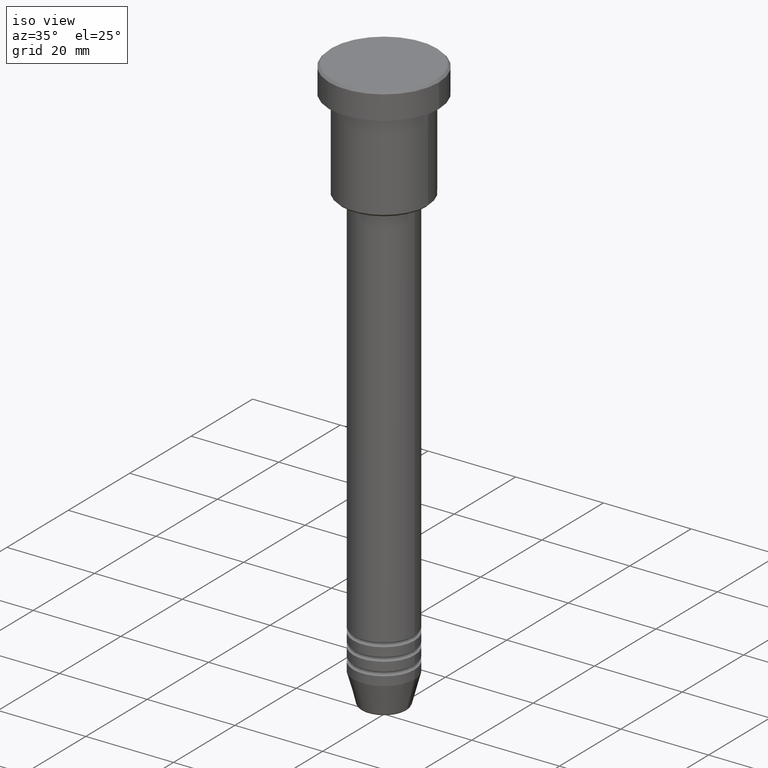
[diagram: clean part render]
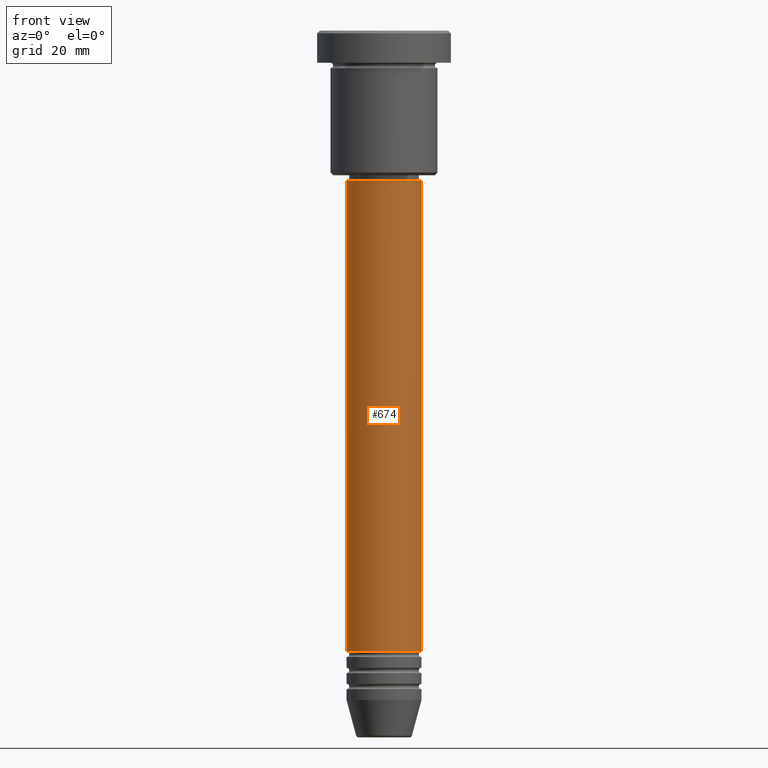
[diagram: tour spotlight — one face highlighted and labeled with its STEP entity id]
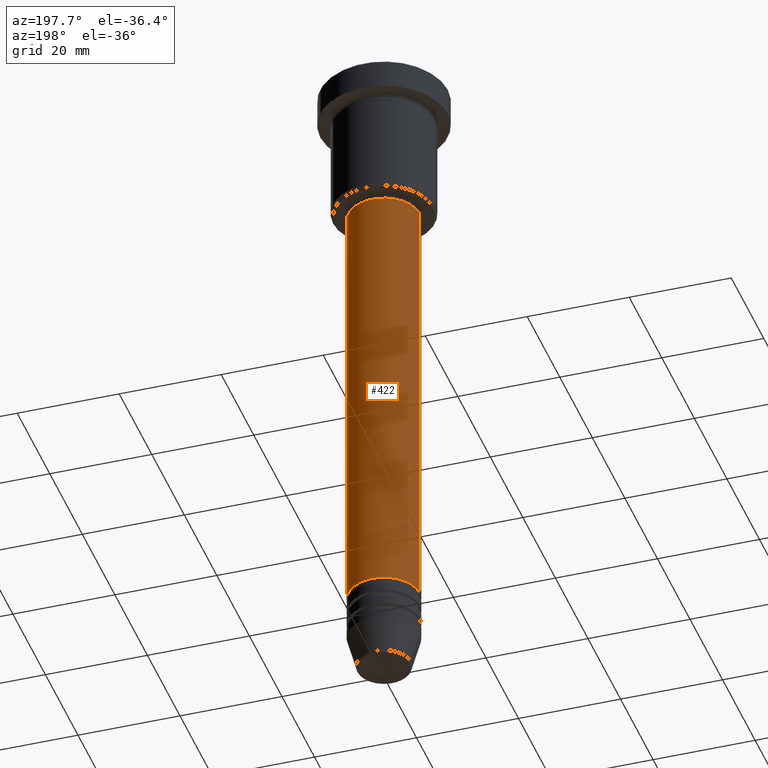
[diagram: tour spotlight — one face highlighted and labeled with its STEP entity id]
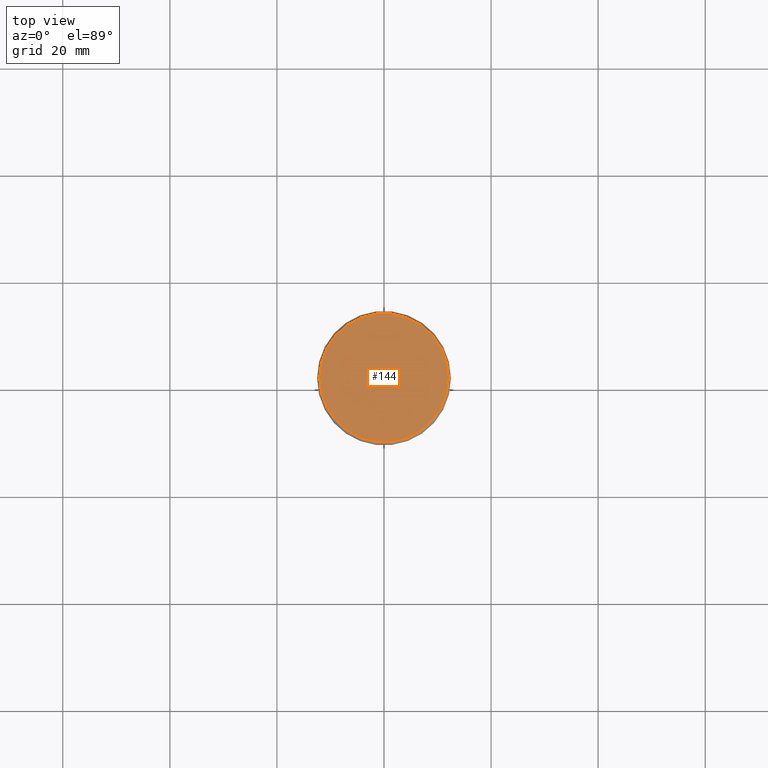
[diagram: tour spotlight — one face highlighted and labeled with its STEP entity id]
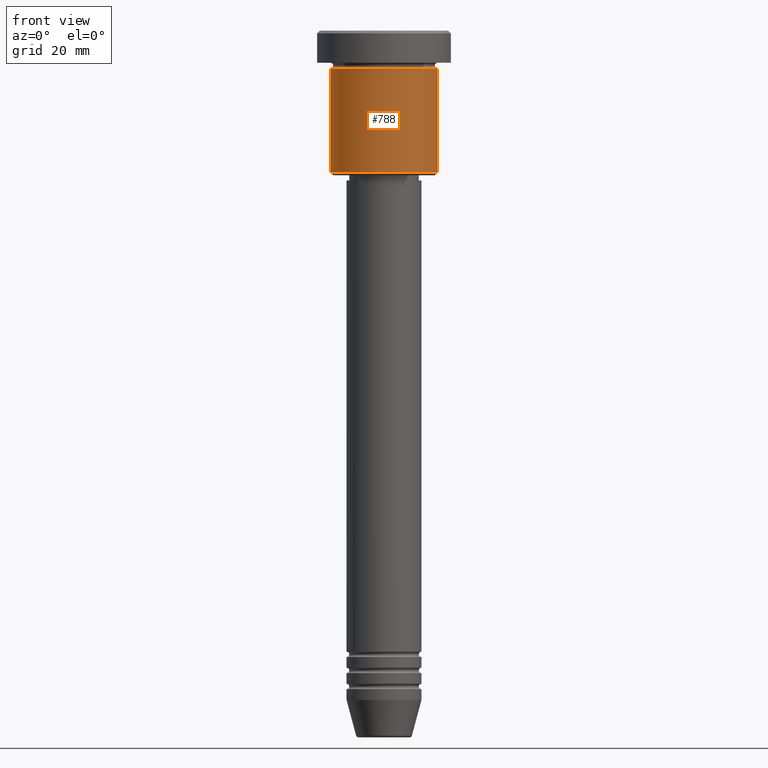
[diagram: tour spotlight — one face highlighted and labeled with its STEP entity id]
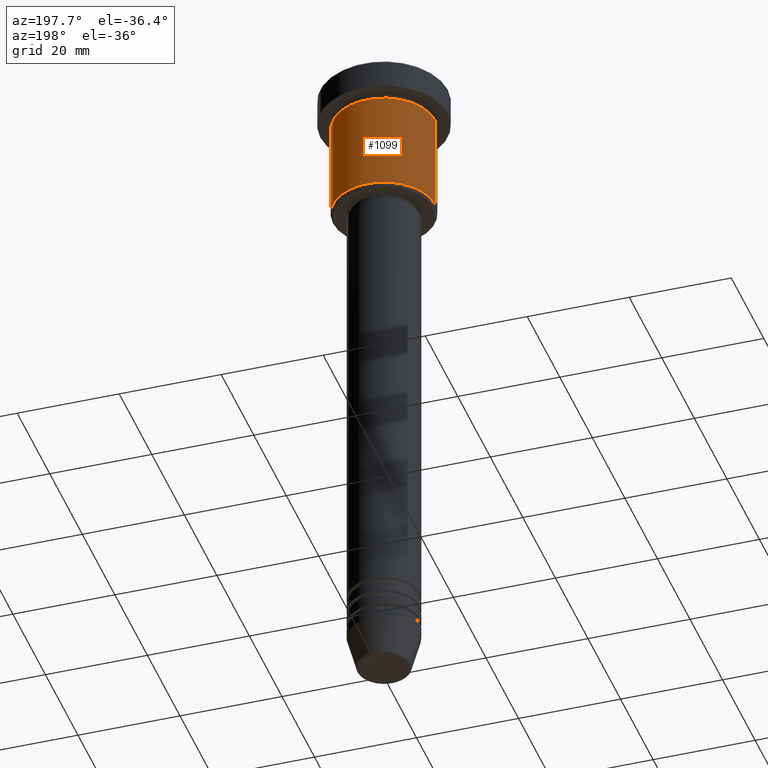
[diagram: tour spotlight — one face highlighted and labeled with its STEP entity id]
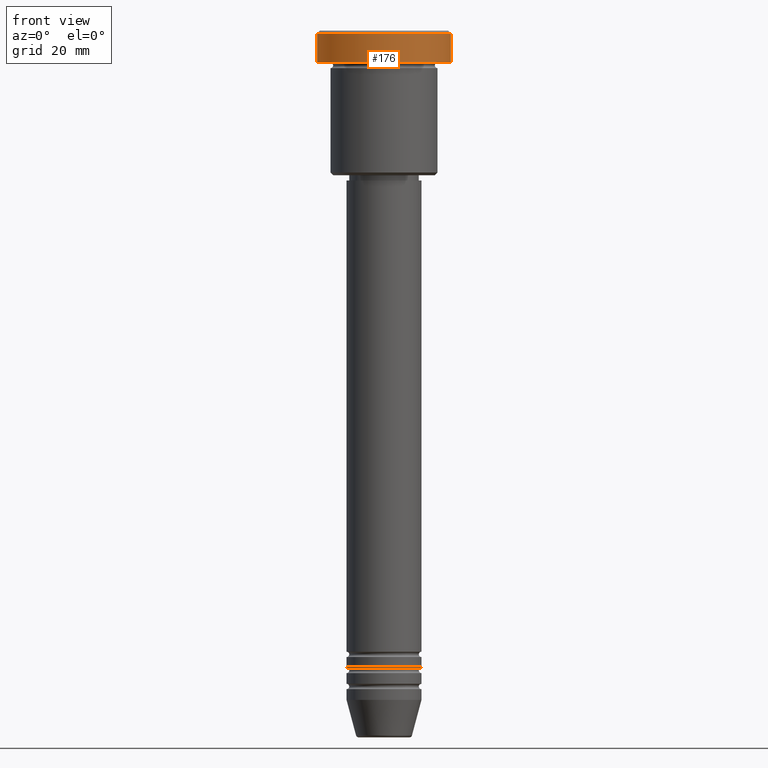
[diagram: tour spotlight — one face highlighted and labeled with its STEP entity id]
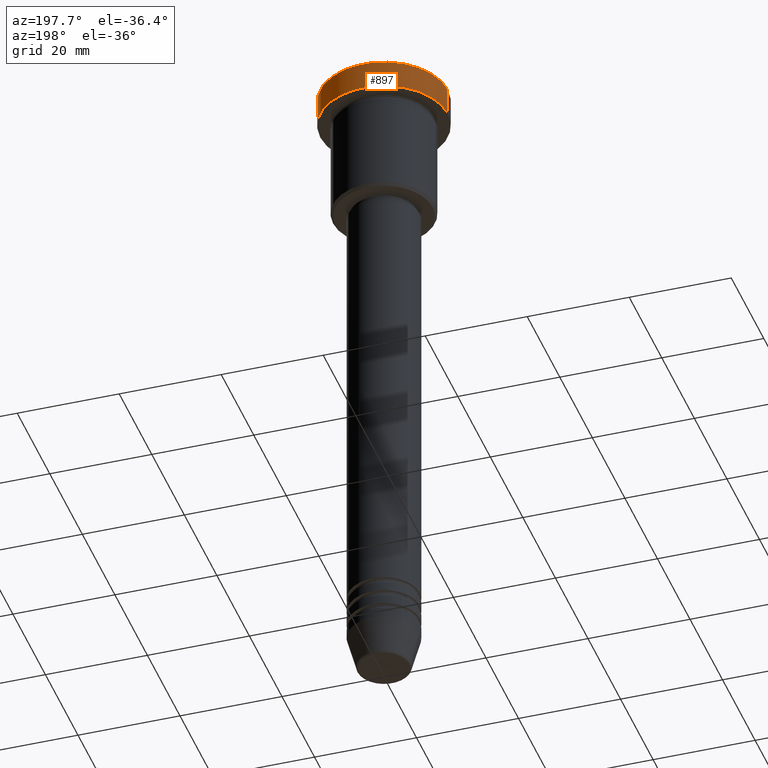
[diagram: tour spotlight — one face highlighted and labeled with its STEP entity id]
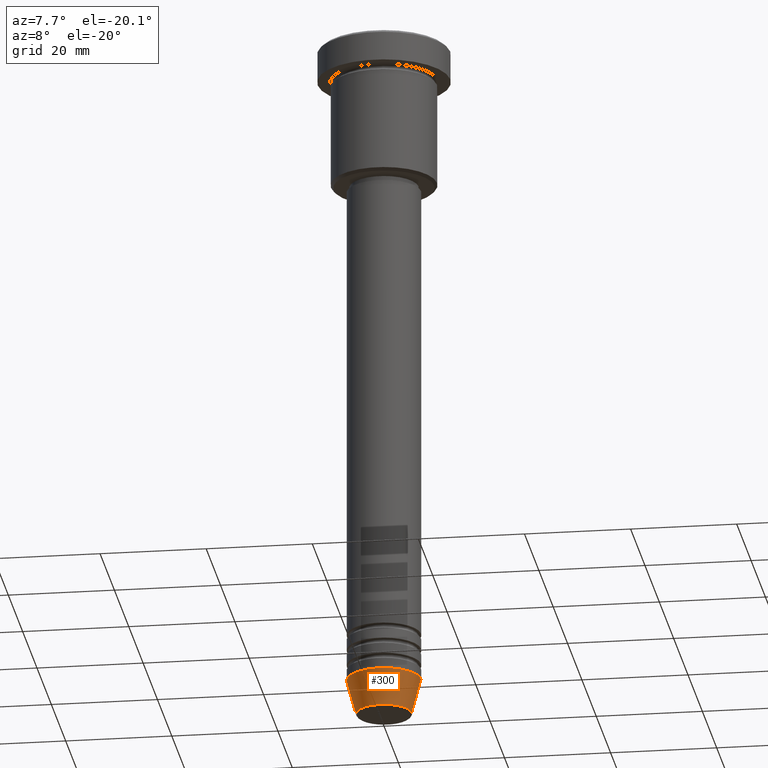
[diagram: tour spotlight — one face highlighted and labeled with its STEP entity id]
A machine part: a face-by-face anatomy tour. The part has 43 B-rep faces; the first image is the clean iso view, then the 8 largest visible faces are spotlighted one at a time (largest first), each with its STEP entity span.

Face 1 — front view, entity #674. In plain terms, the highlighted cylindrical surface (partial cylindrical patch) has radius 7 mm, axis along (-0, -0, 1).
Definition (entity closure, byte-faithful):
#102 = VERTEX_POINT ( 'NONE', #853 ) ;
#124 = DIRECTION ( 'NONE',  ( -0.000000000000000000, -0.000000000000000000, 1.000000000000000000 ) ) ;
#146 = CARTESIAN_POINT ( 'NONE',  ( 0.000000000000000000, 0.000000000000000000, -28.00000000000000355 ) ) ;
#150 = DIRECTION ( 'NONE',  ( -0.000000000000000000, -0.000000000000000000, 1.000000000000000000 ) ) ;
#235 = DIRECTION ( 'NONE',  ( 1.000000000000000000, 0.000000000000000000, 0.000000000000000000 ) ) ;
#245 = DIRECTION ( 'NONE',  ( -0.000000000000000000, -0.000000000000000000, 1.000000000000000000 ) ) ;
#258 = CARTESIAN_POINT ( 'NONE',  ( -7.000000000000000000, 8.572527594031473190E-16, -115.9999999999999574 ) ) ;
#273 = ORIENTED_EDGE ( 'NONE', *, *, #1077, .T. ) ;
#303 = LINE ( 'NONE', #1009, #556 ) ;
#356 = CARTESIAN_POINT ( 'NONE',  ( 7.000000000000000000, 0.000000000000000000, -28.00000000000000355 ) ) ;
#372 = DIRECTION ( 'NONE',  ( -0.000000000000000000, -0.000000000000000000, 1.000000000000000000 ) ) ;
#418 = DIRECTION ( 'NONE',  ( 1.000000000000000000, 0.000000000000000000, 0.000000000000000000 ) ) ;
#462 = EDGE_LOOP ( 'NONE', ( #1013, #539, #273, #823 ) ) ;
#471 = CIRCLE ( 'NONE', #558, 7.000000000000000000 ) ;
#516 = DIRECTION ( 'NONE',  ( 1.000000000000000000, 0.000000000000000000, 0.000000000000000000 ) ) ;
#539 = ORIENTED_EDGE ( 'NONE', *, *, #1178, .T. ) ;
#556 = VECTOR ( 'NONE', #372, 1000.000000000000000 ) ;
#558 = AXIS2_PLACEMENT_3D ( 'NONE', #608, #1074, #418 ) ;
#579 = LINE ( 'NONE', #935, #1011 ) ;
#608 = CARTESIAN_POINT ( 'NONE',  ( 0.000000000000000000, 0.000000000000000000, -115.9999999999999574 ) ) ;
#621 = EDGE_CURVE ( 'NONE', #830, #102, #303, .T. ) ;
#638 = VERTEX_POINT ( 'NONE', #1032 ) ;
#674 = ADVANCED_FACE ( 'NONE', ( #1028 ), #781, .T. ) ;
#687 = CARTESIAN_POINT ( 'NONE',  ( 0.000000000000000000, 0.000000000000000000, 0.000000000000000000 ) ) ;
#743 = AXIS2_PLACEMENT_3D ( 'NONE', #146, #150, #516 ) ;
#766 = EDGE_CURVE ( 'NONE', #102, #844, #986, .T. ) ;
#781 = CYLINDRICAL_SURFACE ( 'NONE', #847, 7.000000000000000000 ) ;
#823 = ORIENTED_EDGE ( 'NONE', *, *, #766, .F. ) ;
#830 = VERTEX_POINT ( 'NONE', #258 ) ;
#844 = VERTEX_POINT ( 'NONE', #356 ) ;
#847 = AXIS2_PLACEMENT_3D ( 'NONE', #687, #245, #235 ) ;
#853 = CARTESIAN_POINT ( 'NONE',  ( -7.000000000000000000, 8.572527594031473190E-16, -28.00000000000000355 ) ) ;
#935 = CARTESIAN_POINT ( 'NONE',  ( 7.000000000000000000, 0.000000000000000000, 0.000000000000000000 ) ) ;
#986 = CIRCLE ( 'NONE', #743, 7.000000000000000000 ) ;
#1009 = CARTESIAN_POINT ( 'NONE',  ( -7.000000000000000000, 8.572527594031473190E-16, 0.000000000000000000 ) ) ;
#1011 = VECTOR ( 'NONE', #124, 1000.000000000000000 ) ;
#1013 = ORIENTED_EDGE ( 'NONE', *, *, #621, .F. ) ;
#1028 = FACE_OUTER_BOUND ( 'NONE', #462, .T. ) ;
#1032 = CARTESIAN_POINT ( 'NONE',  ( 7.000000000000000000, 0.000000000000000000, -115.9999999999999574 ) ) ;
#1074 = DIRECTION ( 'NONE',  ( -0.000000000000000000, -0.000000000000000000, 1.000000000000000000 ) ) ;
#1077 = EDGE_CURVE ( 'NONE', #638, #844, #579, .T. ) ;
#1178 = EDGE_CURVE ( 'NONE', #830, #638, #471, .T. ) ;

Face 2 — auxiliary view, entity #422. In plain terms, the highlighted cylindrical surface (partial cylindrical patch) has radius 7 mm, axis along (-0, -0, 1).
Definition (entity closure, byte-faithful):
#9 = ORIENTED_EDGE ( 'NONE', *, *, #1077, .F. ) ;
#68 = DIRECTION ( 'NONE',  ( -0.000000000000000000, -0.000000000000000000, 1.000000000000000000 ) ) ;
#102 = VERTEX_POINT ( 'NONE', #853 ) ;
#124 = DIRECTION ( 'NONE',  ( -0.000000000000000000, -0.000000000000000000, 1.000000000000000000 ) ) ;
#188 = CARTESIAN_POINT ( 'NONE',  ( 0.000000000000000000, 0.000000000000000000, -28.00000000000000355 ) ) ;
#258 = CARTESIAN_POINT ( 'NONE',  ( -7.000000000000000000, 8.572527594031473190E-16, -115.9999999999999574 ) ) ;
#266 = CYLINDRICAL_SURFACE ( 'NONE', #776, 7.000000000000000000 ) ;
#267 = AXIS2_PLACEMENT_3D ( 'NONE', #1122, #1128, #1014 ) ;
#303 = LINE ( 'NONE', #1009, #556 ) ;
#352 = DIRECTION ( 'NONE',  ( -0.000000000000000000, -0.000000000000000000, 1.000000000000000000 ) ) ;
#356 = CARTESIAN_POINT ( 'NONE',  ( 7.000000000000000000, 0.000000000000000000, -28.00000000000000355 ) ) ;
#372 = DIRECTION ( 'NONE',  ( -0.000000000000000000, -0.000000000000000000, 1.000000000000000000 ) ) ;
#395 = ORIENTED_EDGE ( 'NONE', *, *, #621, .T. ) ;
#422 = ADVANCED_FACE ( 'NONE', ( #899 ), #266, .T. ) ;
#446 = DIRECTION ( 'NONE',  ( 1.000000000000000000, 0.000000000000000000, 0.000000000000000000 ) ) ;
#473 = ORIENTED_EDGE ( 'NONE', *, *, #874, .F. ) ;
#556 = VECTOR ( 'NONE', #372, 1000.000000000000000 ) ;
#579 = LINE ( 'NONE', #935, #1011 ) ;
#615 = EDGE_CURVE ( 'NONE', #638, #830, #967, .T. ) ;
#621 = EDGE_CURVE ( 'NONE', #830, #102, #303, .T. ) ;
#638 = VERTEX_POINT ( 'NONE', #1032 ) ;
#711 = CARTESIAN_POINT ( 'NONE',  ( 0.000000000000000000, 0.000000000000000000, 0.000000000000000000 ) ) ;
#776 = AXIS2_PLACEMENT_3D ( 'NONE', #711, #68, #446 ) ;
#818 = ORIENTED_EDGE ( 'NONE', *, *, #615, .T. ) ;
#830 = VERTEX_POINT ( 'NONE', #258 ) ;
#844 = VERTEX_POINT ( 'NONE', #356 ) ;
#849 = CIRCLE ( 'NONE', #887, 7.000000000000000000 ) ;
#853 = CARTESIAN_POINT ( 'NONE',  ( -7.000000000000000000, 8.572527594031473190E-16, -28.00000000000000355 ) ) ;
#874 = EDGE_CURVE ( 'NONE', #844, #102, #849, .T. ) ;
#887 = AXIS2_PLACEMENT_3D ( 'NONE', #188, #352, #1175 ) ;
#899 = FACE_OUTER_BOUND ( 'NONE', #1137, .T. ) ;
#935 = CARTESIAN_POINT ( 'NONE',  ( 7.000000000000000000, 0.000000000000000000, 0.000000000000000000 ) ) ;
#967 = CIRCLE ( 'NONE', #267, 7.000000000000000000 ) ;
#1009 = CARTESIAN_POINT ( 'NONE',  ( -7.000000000000000000, 8.572527594031473190E-16, 0.000000000000000000 ) ) ;
#1011 = VECTOR ( 'NONE', #124, 1000.000000000000000 ) ;
#1014 = DIRECTION ( 'NONE',  ( 1.000000000000000000, 0.000000000000000000, 0.000000000000000000 ) ) ;
#1032 = CARTESIAN_POINT ( 'NONE',  ( 7.000000000000000000, 0.000000000000000000, -115.9999999999999574 ) ) ;
#1077 = EDGE_CURVE ( 'NONE', #638, #844, #579, .T. ) ;
#1122 = CARTESIAN_POINT ( 'NONE',  ( 0.000000000000000000, 0.000000000000000000, -115.9999999999999574 ) ) ;
#1128 = DIRECTION ( 'NONE',  ( -0.000000000000000000, -0.000000000000000000, 1.000000000000000000 ) ) ;
#1137 = EDGE_LOOP ( 'NONE', ( #818, #395, #473, #9 ) ) ;
#1175 = DIRECTION ( 'NONE',  ( 1.000000000000000000, 0.000000000000000000, 0.000000000000000000 ) ) ;

Face 3 — top view, entity #144. In plain terms, the highlighted planar face has unit normal (0, -0, 1).
Definition (entity closure, byte-faithful):
#6 = VERTEX_POINT ( 'NONE', #483 ) ;
#33 = AXIS2_PLACEMENT_3D ( 'NONE', #795, #168, #709 ) ;
#44 = EDGE_CURVE ( 'NONE', #6, #177, #699, .T. ) ;
#111 = AXIS2_PLACEMENT_3D ( 'NONE', #949, #404, #657 ) ;
#144 = ADVANCED_FACE ( 'NONE', ( #592 ), #759, .T. ) ;
#168 = DIRECTION ( 'NONE',  ( -0.000000000000000000, -0.000000000000000000, 1.000000000000000000 ) ) ;
#177 = VERTEX_POINT ( 'NONE', #344 ) ;
#317 = AXIS2_PLACEMENT_3D ( 'NONE', #553, #1008, #1095 ) ;
#344 = CARTESIAN_POINT ( 'NONE',  ( -12.00000000000002487, 0.000000000000000000, 0.000000000000000000 ) ) ;
#404 = DIRECTION ( 'NONE',  ( 0.000000000000000000, -0.000000000000000000, 1.000000000000000000 ) ) ;
#419 = ORIENTED_EDGE ( 'NONE', *, *, #813, .T. ) ;
#439 = ORIENTED_EDGE ( 'NONE', *, *, #44, .T. ) ;
#483 = CARTESIAN_POINT ( 'NONE',  ( 12.00000000000002487, 1.500192328955509115E-15, 0.000000000000000000 ) ) ;
#553 = CARTESIAN_POINT ( 'NONE',  ( 0.000000000000000000, 0.000000000000000000, 0.000000000000000000 ) ) ;
#592 = FACE_OUTER_BOUND ( 'NONE', #1036, .T. ) ;
#657 = DIRECTION ( 'NONE',  ( 1.000000000000000000, 0.000000000000000000, 0.000000000000000000 ) ) ;
#699 = CIRCLE ( 'NONE', #317, 12.00000000000002487 ) ;
#709 = DIRECTION ( 'NONE',  ( 1.000000000000000000, 0.000000000000000000, 0.000000000000000000 ) ) ;
#759 = PLANE ( 'NONE',  #111 ) ;
#795 = CARTESIAN_POINT ( 'NONE',  ( 0.000000000000000000, 0.000000000000000000, 0.000000000000000000 ) ) ;
#813 = EDGE_CURVE ( 'NONE', #177, #6, #1047, .T. ) ;
#949 = CARTESIAN_POINT ( 'NONE',  ( 0.000000000000000000, 0.000000000000000000, 0.000000000000000000 ) ) ;
#1008 = DIRECTION ( 'NONE',  ( -0.000000000000000000, -0.000000000000000000, 1.000000000000000000 ) ) ;
#1036 = EDGE_LOOP ( 'NONE', ( #419, #439 ) ) ;
#1047 = CIRCLE ( 'NONE', #33, 12.00000000000002487 ) ;
#1095 = DIRECTION ( 'NONE',  ( 1.000000000000000000, 0.000000000000000000, 0.000000000000000000 ) ) ;

Face 4 — front view, entity #788. In plain terms, the highlighted cylindrical surface (partial cylindrical patch) has radius 10 mm, axis along (-0, -0, 1).
Definition (entity closure, byte-faithful):
#15 = AXIS2_PLACEMENT_3D ( 'NONE', #677, #696, #1061 ) ;
#47 = CARTESIAN_POINT ( 'NONE',  ( -10.00000000000000000, 1.224646799147353256E-15, -6.999999999999996447 ) ) ;
#50 = DIRECTION ( 'NONE',  ( -0.000000000000000000, -0.000000000000000000, 1.000000000000000000 ) ) ;
#60 = EDGE_CURVE ( 'NONE', #928, #1169, #714, .T. ) ;
#70 = AXIS2_PLACEMENT_3D ( 'NONE', #715, #542, #88 ) ;
#88 = DIRECTION ( 'NONE',  ( 1.000000000000000000, 0.000000000000000000, 0.000000000000000000 ) ) ;
#158 = CARTESIAN_POINT ( 'NONE',  ( 10.00000000000000000, 0.000000000000000000, -6.999999999999996447 ) ) ;
#167 = VERTEX_POINT ( 'NONE', #47 ) ;
#284 = CIRCLE ( 'NONE', #70, 10.00000000000000000 ) ;
#334 = CYLINDRICAL_SURFACE ( 'NONE', #15, 10.00000000000000000 ) ;
#351 = ORIENTED_EDGE ( 'NONE', *, *, #60, .T. ) ;
#393 = CIRCLE ( 'NONE', #493, 10.00000000000000000 ) ;
#398 = EDGE_CURVE ( 'NONE', #167, #1169, #284, .T. ) ;
#406 = FACE_OUTER_BOUND ( 'NONE', #1018, .T. ) ;
#436 = CARTESIAN_POINT ( 'NONE',  ( 10.00000000000000000, 0.000000000000000000, -26.50000000000000000 ) ) ;
#478 = ORIENTED_EDGE ( 'NONE', *, *, #398, .F. ) ;
#493 = AXIS2_PLACEMENT_3D ( 'NONE', #876, #673, #1057 ) ;
#542 = DIRECTION ( 'NONE',  ( -0.000000000000000000, -0.000000000000000000, 1.000000000000000000 ) ) ;
#593 = ORIENTED_EDGE ( 'NONE', *, *, #717, .F. ) ;
#669 = ORIENTED_EDGE ( 'NONE', *, *, #734, .T. ) ;
#673 = DIRECTION ( 'NONE',  ( -0.000000000000000000, -0.000000000000000000, 1.000000000000000000 ) ) ;
#677 = CARTESIAN_POINT ( 'NONE',  ( 0.000000000000000000, 0.000000000000000000, 0.000000000000000000 ) ) ;
#696 = DIRECTION ( 'NONE',  ( -0.000000000000000000, -0.000000000000000000, 1.000000000000000000 ) ) ;
#714 = LINE ( 'NONE', #912, #868 ) ;
#715 = CARTESIAN_POINT ( 'NONE',  ( 0.000000000000000000, 0.000000000000000000, -6.999999999999996447 ) ) ;
#717 = EDGE_CURVE ( 'NONE', #916, #167, #765, .T. ) ;
#734 = EDGE_CURVE ( 'NONE', #916, #928, #393, .T. ) ;
#756 = VECTOR ( 'NONE', #50, 1000.000000000000000 ) ;
#765 = LINE ( 'NONE', #1133, #756 ) ;
#788 = ADVANCED_FACE ( 'NONE', ( #406 ), #334, .T. ) ;
#868 = VECTOR ( 'NONE', #903, 1000.000000000000000 ) ;
#876 = CARTESIAN_POINT ( 'NONE',  ( 0.000000000000000000, 0.000000000000000000, -26.50000000000000000 ) ) ;
#889 = CARTESIAN_POINT ( 'NONE',  ( -10.00000000000000000, 1.224646799147353256E-15, -26.50000000000000000 ) ) ;
#903 = DIRECTION ( 'NONE',  ( -0.000000000000000000, -0.000000000000000000, 1.000000000000000000 ) ) ;
#912 = CARTESIAN_POINT ( 'NONE',  ( 10.00000000000000000, 0.000000000000000000, 0.000000000000000000 ) ) ;
#916 = VERTEX_POINT ( 'NONE', #889 ) ;
#928 = VERTEX_POINT ( 'NONE', #436 ) ;
#1018 = EDGE_LOOP ( 'NONE', ( #593, #669, #351, #478 ) ) ;
#1057 = DIRECTION ( 'NONE',  ( -1.000000000000000000, 0.000000000000000000, 0.000000000000000000 ) ) ;
#1061 = DIRECTION ( 'NONE',  ( 1.000000000000000000, 0.000000000000000000, 0.000000000000000000 ) ) ;
#1133 = CARTESIAN_POINT ( 'NONE',  ( -10.00000000000000000, 1.224646799147353256E-15, 0.000000000000000000 ) ) ;
#1169 = VERTEX_POINT ( 'NONE', #158 ) ;

Face 5 — auxiliary view, entity #1099. In plain terms, the highlighted cylindrical surface (partial cylindrical patch) has radius 10 mm, axis along (-0, -0, 1).
Definition (entity closure, byte-faithful):
#40 = DIRECTION ( 'NONE',  ( 1.000000000000000000, 0.000000000000000000, 0.000000000000000000 ) ) ;
#47 = CARTESIAN_POINT ( 'NONE',  ( -10.00000000000000000, 1.224646799147353256E-15, -6.999999999999996447 ) ) ;
#50 = DIRECTION ( 'NONE',  ( -0.000000000000000000, -0.000000000000000000, 1.000000000000000000 ) ) ;
#51 = AXIS2_PLACEMENT_3D ( 'NONE', #514, #66, #292 ) ;
#60 = EDGE_CURVE ( 'NONE', #928, #1169, #714, .T. ) ;
#66 = DIRECTION ( 'NONE',  ( -0.000000000000000000, -0.000000000000000000, 1.000000000000000000 ) ) ;
#90 = CIRCLE ( 'NONE', #51, 10.00000000000000000 ) ;
#99 = EDGE_CURVE ( 'NONE', #928, #916, #90, .T. ) ;
#129 = FACE_OUTER_BOUND ( 'NONE', #999, .T. ) ;
#158 = CARTESIAN_POINT ( 'NONE',  ( 10.00000000000000000, 0.000000000000000000, -6.999999999999996447 ) ) ;
#167 = VERTEX_POINT ( 'NONE', #47 ) ;
#190 = DIRECTION ( 'NONE',  ( 1.000000000000000000, 0.000000000000000000, 0.000000000000000000 ) ) ;
#196 = ORIENTED_EDGE ( 'NONE', *, *, #99, .T. ) ;
#232 = AXIS2_PLACEMENT_3D ( 'NONE', #370, #281, #190 ) ;
#281 = DIRECTION ( 'NONE',  ( -0.000000000000000000, -0.000000000000000000, 1.000000000000000000 ) ) ;
#292 = DIRECTION ( 'NONE',  ( -1.000000000000000000, 0.000000000000000000, 0.000000000000000000 ) ) ;
#304 = CARTESIAN_POINT ( 'NONE',  ( 0.000000000000000000, 0.000000000000000000, 0.000000000000000000 ) ) ;
#370 = CARTESIAN_POINT ( 'NONE',  ( 0.000000000000000000, 0.000000000000000000, -6.999999999999996447 ) ) ;
#436 = CARTESIAN_POINT ( 'NONE',  ( 10.00000000000000000, 0.000000000000000000, -26.50000000000000000 ) ) ;
#481 = EDGE_CURVE ( 'NONE', #1169, #167, #742, .T. ) ;
#490 = DIRECTION ( 'NONE',  ( -0.000000000000000000, -0.000000000000000000, 1.000000000000000000 ) ) ;
#514 = CARTESIAN_POINT ( 'NONE',  ( 0.000000000000000000, 0.000000000000000000, -26.50000000000000000 ) ) ;
#563 = ORIENTED_EDGE ( 'NONE', *, *, #717, .T. ) ;
#581 = ORIENTED_EDGE ( 'NONE', *, *, #481, .F. ) ;
#671 = CYLINDRICAL_SURFACE ( 'NONE', #779, 10.00000000000000000 ) ;
#714 = LINE ( 'NONE', #912, #868 ) ;
#717 = EDGE_CURVE ( 'NONE', #916, #167, #765, .T. ) ;
#727 = ORIENTED_EDGE ( 'NONE', *, *, #60, .F. ) ;
#742 = CIRCLE ( 'NONE', #232, 10.00000000000000000 ) ;
#756 = VECTOR ( 'NONE', #50, 1000.000000000000000 ) ;
#765 = LINE ( 'NONE', #1133, #756 ) ;
#779 = AXIS2_PLACEMENT_3D ( 'NONE', #304, #490, #40 ) ;
#868 = VECTOR ( 'NONE', #903, 1000.000000000000000 ) ;
#889 = CARTESIAN_POINT ( 'NONE',  ( -10.00000000000000000, 1.224646799147353256E-15, -26.50000000000000000 ) ) ;
#903 = DIRECTION ( 'NONE',  ( -0.000000000000000000, -0.000000000000000000, 1.000000000000000000 ) ) ;
#912 = CARTESIAN_POINT ( 'NONE',  ( 10.00000000000000000, 0.000000000000000000, 0.000000000000000000 ) ) ;
#916 = VERTEX_POINT ( 'NONE', #889 ) ;
#928 = VERTEX_POINT ( 'NONE', #436 ) ;
#999 = EDGE_LOOP ( 'NONE', ( #196, #563, #581, #727 ) ) ;
#1099 = ADVANCED_FACE ( 'NONE', ( #129 ), #671, .T. ) ;
#1133 = CARTESIAN_POINT ( 'NONE',  ( -10.00000000000000000, 1.224646799147353256E-15, 0.000000000000000000 ) ) ;
#1169 = VERTEX_POINT ( 'NONE', #158 ) ;

Face 6 — front view, entity #176. In plain terms, the highlighted cylindrical surface (partial cylindrical patch) has radius 12.5 mm, axis along (-0, -0, 1).
Definition (entity closure, byte-faithful):
#1 = DIRECTION ( 'NONE',  ( -0.000000000000000000, -0.000000000000000000, 1.000000000000000000 ) ) ;
#12 = DIRECTION ( 'NONE',  ( 1.000000000000000000, 0.000000000000000000, 0.000000000000000000 ) ) ;
#14 = CIRCLE ( 'NONE', #810, 12.50000000000000000 ) ;
#77 = CARTESIAN_POINT ( 'NONE',  ( 12.50000000000000000, 0.000000000000000000, 0.000000000000000000 ) ) ;
#103 = LINE ( 'NONE', #486, #252 ) ;
#109 = DIRECTION ( 'NONE',  ( -0.000000000000000000, -0.000000000000000000, 1.000000000000000000 ) ) ;
#120 = DIRECTION ( 'NONE',  ( -0.000000000000000000, -0.000000000000000000, 1.000000000000000000 ) ) ;
#143 = CARTESIAN_POINT ( 'NONE',  ( 0.000000000000000000, 0.000000000000000000, 0.000000000000000000 ) ) ;
#176 = ADVANCED_FACE ( 'NONE', ( #953 ), #875, .T. ) ;
#181 = ORIENTED_EDGE ( 'NONE', *, *, #582, .T. ) ;
#210 = VECTOR ( 'NONE', #1, 1000.000000000000000 ) ;
#227 = VERTEX_POINT ( 'NONE', #873 ) ;
#250 = AXIS2_PLACEMENT_3D ( 'NONE', #143, #461, #12 ) ;
#252 = VECTOR ( 'NONE', #109, 1000.000000000000000 ) ;
#279 = ORIENTED_EDGE ( 'NONE', *, *, #545, .T. ) ;
#306 = DIRECTION ( 'NONE',  ( 0.000000000000000000, 0.000000000000000000, -1.000000000000000000 ) ) ;
#363 = ORIENTED_EDGE ( 'NONE', *, *, #463, .T. ) ;
#460 = ORIENTED_EDGE ( 'NONE', *, *, #523, .F. ) ;
#461 = DIRECTION ( 'NONE',  ( -0.000000000000000000, -0.000000000000000000, 1.000000000000000000 ) ) ;
#463 = EDGE_CURVE ( 'NONE', #487, #752, #1091, .T. ) ;
#486 = CARTESIAN_POINT ( 'NONE',  ( -12.50000000000000000, 1.530808498934191521E-15, 0.000000000000000000 ) ) ;
#487 = VERTEX_POINT ( 'NONE', #555 ) ;
#523 = EDGE_CURVE ( 'NONE', #227, #950, #103, .T. ) ;
#545 = EDGE_CURVE ( 'NONE', #227, #487, #683, .T. ) ;
#555 = CARTESIAN_POINT ( 'NONE',  ( 12.50000000000000000, 0.000000000000000000, -5.999999999999996447 ) ) ;
#582 = EDGE_CURVE ( 'NONE', #752, #950, #14, .T. ) ;
#586 = CARTESIAN_POINT ( 'NONE',  ( 12.50000000000000000, 0.000000000000000000, -0.4999999999999640288 ) ) ;
#654 = CARTESIAN_POINT ( 'NONE',  ( 0.000000000000000000, 0.000000000000000000, -5.999999999999996447 ) ) ;
#658 = DIRECTION ( 'NONE',  ( 1.000000000000000000, 0.000000000000000000, 0.000000000000000000 ) ) ;
#683 = CIRCLE ( 'NONE', #755, 12.50000000000000000 ) ;
#731 = EDGE_LOOP ( 'NONE', ( #460, #279, #363, #181 ) ) ;
#752 = VERTEX_POINT ( 'NONE', #586 ) ;
#755 = AXIS2_PLACEMENT_3D ( 'NONE', #654, #120, #934 ) ;
#810 = AXIS2_PLACEMENT_3D ( 'NONE', #917, #306, #658 ) ;
#873 = CARTESIAN_POINT ( 'NONE',  ( -12.50000000000000000, 1.530808498934191521E-15, -5.999999999999996447 ) ) ;
#875 = CYLINDRICAL_SURFACE ( 'NONE', #250, 12.50000000000000000 ) ;
#909 = CARTESIAN_POINT ( 'NONE',  ( -12.50000000000000000, 1.530808498934191521E-15, -0.4999999999999640288 ) ) ;
#917 = CARTESIAN_POINT ( 'NONE',  ( 0.000000000000000000, 0.000000000000000000, -0.4999999999999640288 ) ) ;
#934 = DIRECTION ( 'NONE',  ( 1.000000000000000000, 0.000000000000000000, 0.000000000000000000 ) ) ;
#950 = VERTEX_POINT ( 'NONE', #909 ) ;
#953 = FACE_OUTER_BOUND ( 'NONE', #731, .T. ) ;
#1091 = LINE ( 'NONE', #77, #210 ) ;

Face 7 — auxiliary view, entity #897. In plain terms, the highlighted cylindrical surface (partial cylindrical patch) has radius 12.5 mm, axis along (-0, -0, 1).
Definition (entity closure, byte-faithful):
#1 = DIRECTION ( 'NONE',  ( -0.000000000000000000, -0.000000000000000000, 1.000000000000000000 ) ) ;
#4 = DIRECTION ( 'NONE',  ( -0.000000000000000000, -0.000000000000000000, 1.000000000000000000 ) ) ;
#77 = CARTESIAN_POINT ( 'NONE',  ( 12.50000000000000000, 0.000000000000000000, 0.000000000000000000 ) ) ;
#103 = LINE ( 'NONE', #486, #252 ) ;
#109 = DIRECTION ( 'NONE',  ( -0.000000000000000000, -0.000000000000000000, 1.000000000000000000 ) ) ;
#153 = EDGE_CURVE ( 'NONE', #950, #752, #609, .T. ) ;
#194 = ORIENTED_EDGE ( 'NONE', *, *, #1033, .T. ) ;
#210 = VECTOR ( 'NONE', #1, 1000.000000000000000 ) ;
#227 = VERTEX_POINT ( 'NONE', #873 ) ;
#252 = VECTOR ( 'NONE', #109, 1000.000000000000000 ) ;
#320 = DIRECTION ( 'NONE',  ( 1.000000000000000000, 0.000000000000000000, 0.000000000000000000 ) ) ;
#339 = FACE_OUTER_BOUND ( 'NONE', #559, .T. ) ;
#377 = CIRCLE ( 'NONE', #494, 12.50000000000000000 ) ;
#382 = DIRECTION ( 'NONE',  ( 1.000000000000000000, 0.000000000000000000, 0.000000000000000000 ) ) ;
#463 = EDGE_CURVE ( 'NONE', #487, #752, #1091, .T. ) ;
#486 = CARTESIAN_POINT ( 'NONE',  ( -12.50000000000000000, 1.530808498934191521E-15, 0.000000000000000000 ) ) ;
#487 = VERTEX_POINT ( 'NONE', #555 ) ;
#494 = AXIS2_PLACEMENT_3D ( 'NONE', #750, #4, #382 ) ;
#523 = EDGE_CURVE ( 'NONE', #227, #950, #103, .T. ) ;
#524 = ORIENTED_EDGE ( 'NONE', *, *, #523, .T. ) ;
#555 = CARTESIAN_POINT ( 'NONE',  ( 12.50000000000000000, 0.000000000000000000, -5.999999999999996447 ) ) ;
#559 = EDGE_LOOP ( 'NONE', ( #194, #524, #585, #1017 ) ) ;
#585 = ORIENTED_EDGE ( 'NONE', *, *, #153, .T. ) ;
#586 = CARTESIAN_POINT ( 'NONE',  ( 12.50000000000000000, 0.000000000000000000, -0.4999999999999640288 ) ) ;
#609 = CIRCLE ( 'NONE', #1139, 12.50000000000000000 ) ;
#624 = CYLINDRICAL_SURFACE ( 'NONE', #945, 12.50000000000000000 ) ;
#704 = CARTESIAN_POINT ( 'NONE',  ( 0.000000000000000000, 0.000000000000000000, 0.000000000000000000 ) ) ;
#750 = CARTESIAN_POINT ( 'NONE',  ( 0.000000000000000000, 0.000000000000000000, -5.999999999999996447 ) ) ;
#752 = VERTEX_POINT ( 'NONE', #586 ) ;
#873 = CARTESIAN_POINT ( 'NONE',  ( -12.50000000000000000, 1.530808498934191521E-15, -5.999999999999996447 ) ) ;
#880 = DIRECTION ( 'NONE',  ( 1.000000000000000000, 0.000000000000000000, 0.000000000000000000 ) ) ;
#897 = ADVANCED_FACE ( 'NONE', ( #339 ), #624, .T. ) ;
#909 = CARTESIAN_POINT ( 'NONE',  ( -12.50000000000000000, 1.530808498934191521E-15, -0.4999999999999640288 ) ) ;
#945 = AXIS2_PLACEMENT_3D ( 'NONE', #704, #1089, #880 ) ;
#950 = VERTEX_POINT ( 'NONE', #909 ) ;
#974 = DIRECTION ( 'NONE',  ( 0.000000000000000000, 0.000000000000000000, -1.000000000000000000 ) ) ;
#1017 = ORIENTED_EDGE ( 'NONE', *, *, #463, .F. ) ;
#1033 = EDGE_CURVE ( 'NONE', #487, #227, #377, .T. ) ;
#1069 = CARTESIAN_POINT ( 'NONE',  ( 0.000000000000000000, 0.000000000000000000, -0.4999999999999640288 ) ) ;
#1089 = DIRECTION ( 'NONE',  ( -0.000000000000000000, -0.000000000000000000, 1.000000000000000000 ) ) ;
#1091 = LINE ( 'NONE', #77, #210 ) ;
#1139 = AXIS2_PLACEMENT_3D ( 'NONE', #1069, #974, #320 ) ;

Face 8 — auxiliary view, entity #300. In plain terms, the highlighted conical surface has half-angle 15 deg.
Definition (entity closure, byte-faithful):
#27 = EDGE_CURVE ( 'NONE', #1085, #86, #996, .T. ) ;
#53 = DIRECTION ( 'NONE',  ( -0.000000000000000000, -0.000000000000000000, 1.000000000000000000 ) ) ;
#86 = VERTEX_POINT ( 'NONE', #1105 ) ;
#125 = EDGE_LOOP ( 'NONE', ( #203, #138, #530, #207 ) ) ;
#138 = ORIENTED_EDGE ( 'NONE', *, *, #417, .T. ) ;
#203 = ORIENTED_EDGE ( 'NONE', *, *, #905, .F. ) ;
#207 = ORIENTED_EDGE ( 'NONE', *, *, #947, .F. ) ;
#300 = ADVANCED_FACE ( 'NONE', ( #1062 ), #340, .T. ) ;
#340 = CONICAL_SURFACE ( 'NONE', #884, 7.000000000000000000, 0.2617993877991501295 ) ;
#343 = VECTOR ( 'NONE', #809, 1000.000000000000000 ) ;
#358 = DIRECTION ( 'NONE',  ( -0.000000000000000000, -0.000000000000000000, 1.000000000000000000 ) ) ;
#384 = VERTEX_POINT ( 'NONE', #534 ) ;
#417 = EDGE_CURVE ( 'NONE', #384, #1085, #589, .T. ) ;
#444 = VECTOR ( 'NONE', #802, 1000.000000000000000 ) ;
#482 = CARTESIAN_POINT ( 'NONE',  ( 5.223655072137191269, 0.000000000000000000, -131.6294095225512422 ) ) ;
#530 = ORIENTED_EDGE ( 'NONE', *, *, #27, .T. ) ;
#531 = LINE ( 'NONE', #619, #343 ) ;
#534 = CARTESIAN_POINT ( 'NONE',  ( -5.223655072137191269, 7.484830028987061160E-16, -131.6294095225512422 ) ) ;
#589 = CIRCLE ( 'NONE', #1121, 5.223655072137191269 ) ;
#612 = VERTEX_POINT ( 'NONE', #1106 ) ;
#619 = CARTESIAN_POINT ( 'NONE',  ( -7.000000000000000000, 8.572527594031473190E-16, -125.0000000000000000 ) ) ;
#631 = CARTESIAN_POINT ( 'NONE',  ( 7.000000000000000000, 0.000000000000000000, -125.0000000000000000 ) ) ;
#640 = DIRECTION ( 'NONE',  ( 1.000000000000000000, 0.000000000000000000, 0.000000000000000000 ) ) ;
#728 = CARTESIAN_POINT ( 'NONE',  ( 0.000000000000000000, 0.000000000000000000, -125.0000000000000000 ) ) ;
#782 = DIRECTION ( 'NONE',  ( 1.000000000000000000, 0.000000000000000000, 0.000000000000000000 ) ) ;
#802 = DIRECTION ( 'NONE',  ( 0.2588190451025214056, 0.000000000000000000, 0.9659258262890680902 ) ) ;
#809 = DIRECTION ( 'NONE',  ( -0.2588190451025214056, 3.169619151431772953E-17, 0.9659258262890680902 ) ) ;
#817 = DIRECTION ( 'NONE',  ( 1.000000000000000000, 0.000000000000000000, 0.000000000000000000 ) ) ;
#884 = AXIS2_PLACEMENT_3D ( 'NONE', #977, #53, #782 ) ;
#905 = EDGE_CURVE ( 'NONE', #384, #612, #531, .T. ) ;
#947 = EDGE_CURVE ( 'NONE', #612, #86, #1104, .T. ) ;
#977 = CARTESIAN_POINT ( 'NONE',  ( 0.000000000000000000, 0.000000000000000000, -125.0000000000000000 ) ) ;
#981 = CARTESIAN_POINT ( 'NONE',  ( 0.000000000000000000, 0.000000000000000000, -131.6294095225512422 ) ) ;
#996 = LINE ( 'NONE', #631, #444 ) ;
#1029 = AXIS2_PLACEMENT_3D ( 'NONE', #728, #1094, #640 ) ;
#1062 = FACE_OUTER_BOUND ( 'NONE', #125, .T. ) ;
#1085 = VERTEX_POINT ( 'NONE', #482 ) ;
#1094 = DIRECTION ( 'NONE',  ( -0.000000000000000000, -0.000000000000000000, 1.000000000000000000 ) ) ;
#1104 = CIRCLE ( 'NONE', #1029, 7.000000000000000000 ) ;
#1105 = CARTESIAN_POINT ( 'NONE',  ( 7.000000000000000000, 0.000000000000000000, -125.0000000000000000 ) ) ;
#1106 = CARTESIAN_POINT ( 'NONE',  ( -7.000000000000000000, 8.572527594031473190E-16, -125.0000000000000000 ) ) ;
#1121 = AXIS2_PLACEMENT_3D ( 'NONE', #981, #358, #817 ) ;